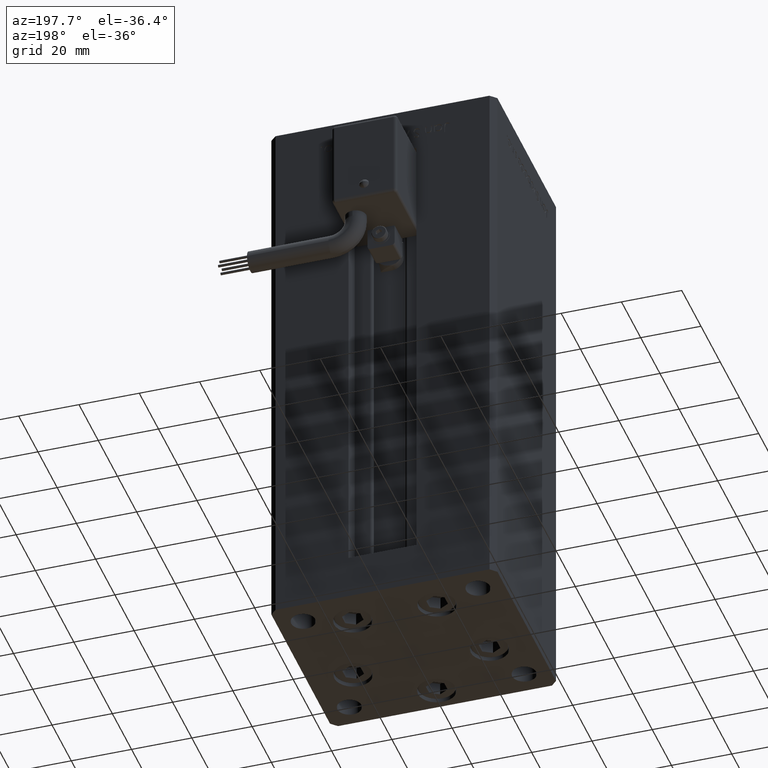
[diagram: clean part render]
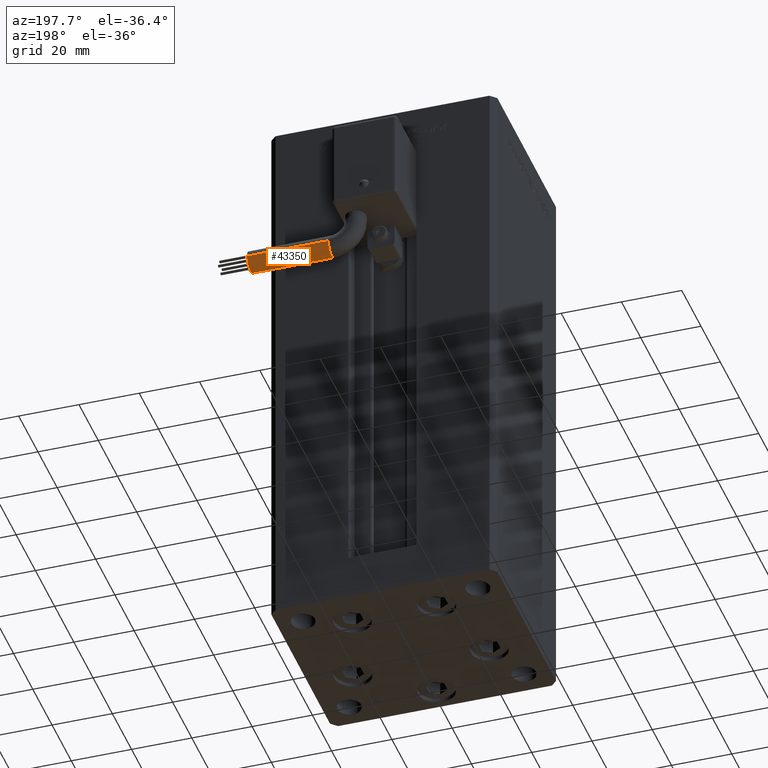
[diagram: same view with one face highlighted and labeled with its STEP entity id]
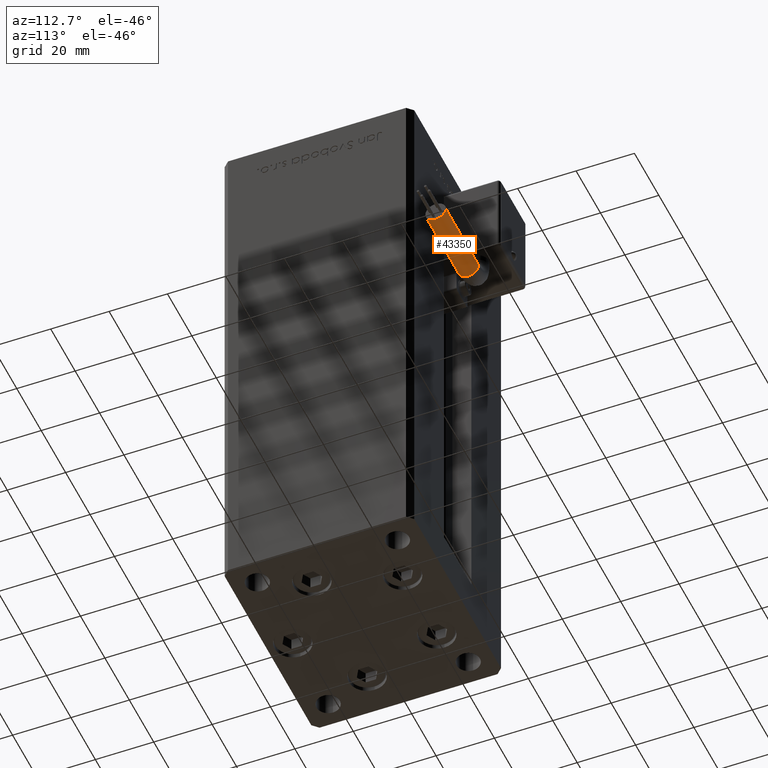
[diagram: same view with one face highlighted and labeled with its STEP entity id]
A machine part, auxiliary view. The second image highlights one B-rep face of the part: STEP entity #43350.
A second angle (auxiliary view) of the same face is appended — the face is thin or edge-on in the first view.
In plain terms, the highlighted cylindrical surface (edge-blend (fillet) strip) has radius 3.5 mm, axis along (1, -0, 0).
Its self-contained STEP definition (entity closure, byte-faithful):
#234 = LINE ( 'NONE', #47104, #49319 ) ;
#552 = ORIENTED_EDGE ( 'NONE', *, *, #32804, .F. ) ;
#2588 = EDGE_LOOP ( 'NONE', ( #19819, #50879, #18720, #552, #43632 ) ) ;
#2832 = CARTESIAN_POINT ( 'NONE',  ( 40.80000000000000426, 38.50000000000000000, -65.00000000000000000 ) ) ;
#3169 = VERTEX_POINT ( 'NONE', #12243 ) ;
#3985 = DIRECTION ( 'NONE',  ( 1.000000000000000000, 0.000000000000000000, 2.220446049250000002E-16 ) ) ;
#5730 = CIRCLE ( 'NONE', #54713, 3.500000000000003109 ) ;
#8638 = FACE_OUTER_BOUND ( 'NONE', #2588, .T. ) ;
#8915 = CARTESIAN_POINT ( 'NONE',  ( 13.79999999999999893, 42.00000000000000000, -65.00000000000000000 ) ) ;
#12243 = CARTESIAN_POINT ( 'NONE',  ( 13.79999999999999893, 42.00000000000000000, -68.50000000000000000 ) ) ;
#12771 = CARTESIAN_POINT ( 'NONE',  ( 40.80000000000000426, 45.50000000000000711, -65.00000000000000000 ) ) ;
#13651 = DIRECTION ( 'NONE',  ( -4.956352788505158337E-16, -1.000000000000000000, 0.000000000000000000 ) ) ;
#13785 = AXIS2_PLACEMENT_3D ( 'NONE', #42207, #3985, #21008 ) ;
#16522 = CARTESIAN_POINT ( 'NONE',  ( 13.79999999999999893, 38.50000000000000000, -65.00000000000000000 ) ) ;
#16758 = DIRECTION ( 'NONE',  ( 1.000000000000000000, -2.599999999999999847E-16, 2.220446049250000002E-16 ) ) ;
#17005 = CARTESIAN_POINT ( 'NONE',  ( 13.79999999999999893, 42.00000000000000000, -65.00000000000000000 ) ) ;
#17564 = AXIS2_PLACEMENT_3D ( 'NONE', #17005, #25375, #20375 ) ;
#18720 = ORIENTED_EDGE ( 'NONE', *, *, #24353, .T. ) ;
#19819 = ORIENTED_EDGE ( 'NONE', *, *, #42806, .T. ) ;
#20375 = DIRECTION ( 'NONE',  ( 0.000000000000000000, 0.000000000000000000, -1.000000000000000000 ) ) ;
#20905 = CIRCLE ( 'NONE', #13785, 3.500000000000003109 ) ;
#21008 = DIRECTION ( 'NONE',  ( 0.000000000000000000, 0.000000000000000000, -1.000000000000000000 ) ) ;
#21143 = VERTEX_POINT ( 'NONE', #2832 ) ;
#21192 = CYLINDRICAL_SURFACE ( 'NONE', #46988, 3.500000000000003109 ) ;
#24353 = EDGE_CURVE ( 'NONE', #40265, #45115, #51612, .T. ) ;
#25375 = DIRECTION ( 'NONE',  ( 1.000000000000000000, 0.000000000000000000, 2.220446049250000002E-16 ) ) ;
#27162 = CARTESIAN_POINT ( 'NONE',  ( 13.79999999999999893, 42.00000000000000000, -65.00000000000000000 ) ) ;
#31293 = EDGE_CURVE ( 'NONE', #52635, #21143, #234, .T. ) ;
#31628 = DIRECTION ( 'NONE',  ( 1.000000000000000000, 0.000000000000000000, 2.220446049250000002E-16 ) ) ;
#31673 = EDGE_CURVE ( 'NONE', #3169, #40265, #5730, .T. ) ;
#32804 = EDGE_CURVE ( 'NONE', #21143, #45115, #20905, .T. ) ;
#37580 = CARTESIAN_POINT ( 'NONE',  ( 13.79999999999999893, 45.50000000000000711, -65.00000000000000000 ) ) ;
#39365 = VECTOR ( 'NONE', #16758, 1000.000000000000000 ) ;
#40265 = VERTEX_POINT ( 'NONE', #37580 ) ;
#42149 = CARTESIAN_POINT ( 'NONE',  ( 13.80000000000000071, 45.50000000000000711, -65.00000000000000000 ) ) ;
#42207 = CARTESIAN_POINT ( 'NONE',  ( 40.80000000000000426, 42.00000000000000000, -65.00000000000000000 ) ) ;
#42806 = EDGE_CURVE ( 'NONE', #52635, #3169, #50527, .T. ) ;
#43350 = ADVANCED_FACE ( 'NONE', ( #8638 ), #21192, .T. ) ;
#43632 = ORIENTED_EDGE ( 'NONE', *, *, #31293, .F. ) ;
#44176 = DIRECTION ( 'NONE',  ( 0.000000000000000000, 0.000000000000000000, -1.000000000000000000 ) ) ;
#45115 = VERTEX_POINT ( 'NONE', #12771 ) ;
#46988 = AXIS2_PLACEMENT_3D ( 'NONE', #8915, #51859, #13651 ) ;
#47104 = CARTESIAN_POINT ( 'NONE',  ( 13.79999999999999716, 38.50000000000000000, -65.00000000000000000 ) ) ;
#49319 = VECTOR ( 'NONE', #51282, 1000.000000000000000 ) ;
#50527 = CIRCLE ( 'NONE', #17564, 3.500000000000003109 ) ;
#50879 = ORIENTED_EDGE ( 'NONE', *, *, #31673, .T. ) ;
#51282 = DIRECTION ( 'NONE',  ( 1.000000000000000000, -2.599999999999999847E-16, 2.220446049250000002E-16 ) ) ;
#51612 = LINE ( 'NONE', #42149, #39365 ) ;
#51859 = DIRECTION ( 'NONE',  ( 1.000000000000000000, -2.599999999999999847E-16, 2.220446049250000002E-16 ) ) ;
#52635 = VERTEX_POINT ( 'NONE', #16522 ) ;
#54713 = AXIS2_PLACEMENT_3D ( 'NONE', #27162, #31628, #44176 ) ;